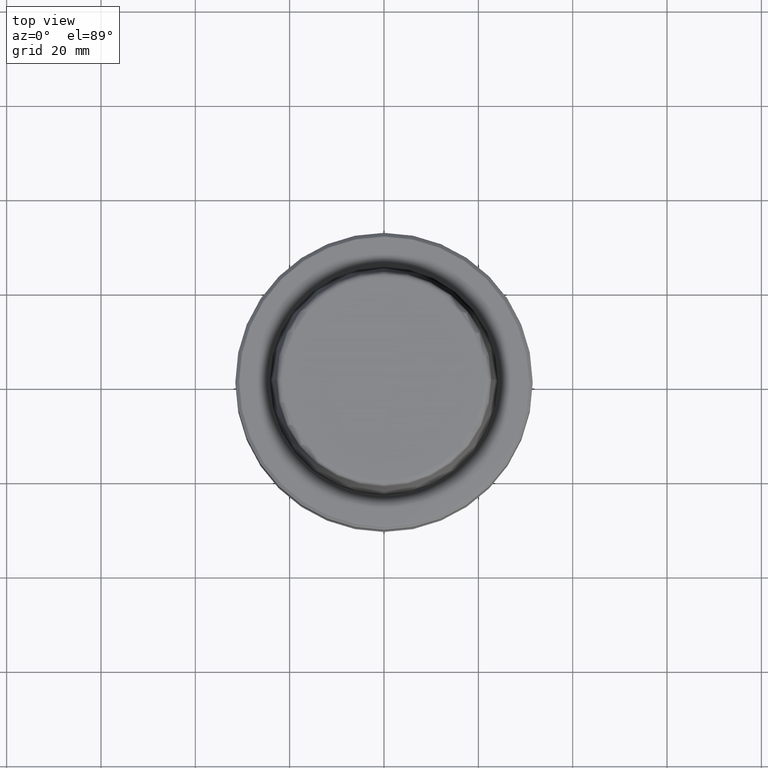
[diagram: clean part render]
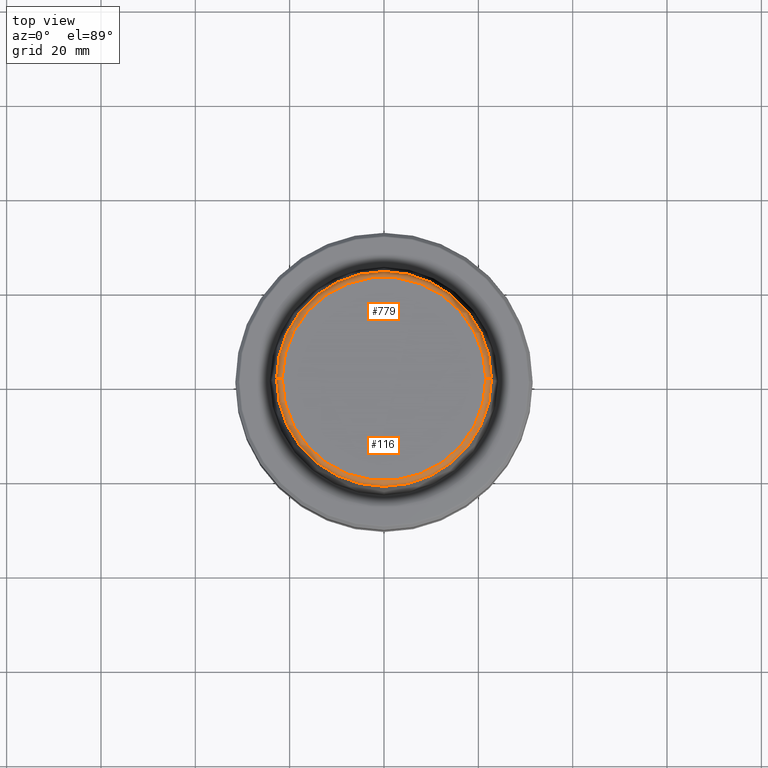
[diagram: same view with one multi-face feature highlighted, each face labeled with its STEP entity id]
A machine part, top view. The highlighted faces form ONE feature: a constant-radius fillet chain: 2 tangent blend faces with common blend radius 1.2 mm. The faces share edges in the B-rep.
Their STEP definitions:
[1] entity #116 (Torus):
#8 = DIRECTION ( 'NONE',  ( 0.0000000000000000000, 0.0000000000000000000, -1.000000000000000000 ) ) ;
#14 = EDGE_CURVE ( 'NONE', #872, #550, #424, .T. ) ;
#59 = CARTESIAN_POINT ( 'NONE',  ( 22.77957961851797100, 2.874852597157249900E-015, 30.76004333261571900 ) ) ;
#98 = CARTESIAN_POINT ( 'NONE',  ( -21.58108272732117100, 2.716307157494421400E-015, 31.89999999999999900 ) ) ;
#116 = ADVANCED_FACE ( 'NONE', ( #1163 ), #154, .T. ) ;
#118 = EDGE_LOOP ( 'NONE', ( #293, #986, #993, #246 ) ) ;
#154 = TOROIDAL_SURFACE ( 'NONE', #575, 21.58108272732117100, 1.200000000000003100 ) ;
#176 = EDGE_CURVE ( 'NONE', #735, #872, #519, .T. ) ;
#190 = DIRECTION ( 'NONE',  ( 1.000000000000000000, 0.0000000000000000000, 0.0000000000000000000 ) ) ;
#246 = ORIENTED_EDGE ( 'NONE', *, *, #431, .F. ) ;
#258 = CARTESIAN_POINT ( 'NONE',  ( 0.0000000000000000000, 0.0000000000000000000, 31.89999999999999900 ) ) ;
#293 = ORIENTED_EDGE ( 'NONE', *, *, #729, .F. ) ;
#304 = DIRECTION ( 'NONE',  ( -0.0000000000000000000, -0.0000000000000000000, 1.000000000000000000 ) ) ;
#424 = CIRCLE ( 'NONE', #1203, 1.200000000000003100 ) ;
#431 = EDGE_CURVE ( 'NONE', #934, #550, #1108, .T. ) ;
#457 = AXIS2_PLACEMENT_3D ( 'NONE', #258, #619, #1226 ) ;
#519 = CIRCLE ( 'NONE', #734, 22.77957961851797100 ) ;
#531 = DIRECTION ( 'NONE',  ( -1.000000000000000000, 1.224646799147353200E-016, 0.0000000000000000000 ) ) ;
#550 = VERTEX_POINT ( 'NONE', #1221 ) ;
#575 = AXIS2_PLACEMENT_3D ( 'NONE', #976, #304, #190 ) ;
#582 = DIRECTION ( 'NONE',  ( 0.0000000000000000000, -1.000000000000000000, 0.0000000000000000000 ) ) ;
#619 = DIRECTION ( 'NONE',  ( -0.0000000000000000000, -0.0000000000000000000, 1.000000000000000000 ) ) ;
#627 = CARTESIAN_POINT ( 'NONE',  ( -21.58108272732117100, 2.642920388414810300E-015, 30.69999999999999200 ) ) ;
#674 = CARTESIAN_POINT ( 'NONE',  ( 21.58108272732117100, 0.0000000000000000000, 30.69999999999999200 ) ) ;
#727 = DIRECTION ( 'NONE',  ( 1.224646799147353200E-016, 1.000000000000000000, 0.0000000000000000000 ) ) ;
#729 = EDGE_CURVE ( 'NONE', #735, #934, #1114, .T. ) ;
#734 = AXIS2_PLACEMENT_3D ( 'NONE', #1110, #1103, #997 ) ;
#735 = VERTEX_POINT ( 'NONE', #1218 ) ;
#872 = VERTEX_POINT ( 'NONE', #59 ) ;
#934 = VERTEX_POINT ( 'NONE', #98 ) ;
#939 = AXIS2_PLACEMENT_3D ( 'NONE', #627, #727, #531 ) ;
#976 = CARTESIAN_POINT ( 'NONE',  ( 0.0000000000000000000, 0.0000000000000000000, 30.69999999999999200 ) ) ;
#986 = ORIENTED_EDGE ( 'NONE', *, *, #176, .T. ) ;
#993 = ORIENTED_EDGE ( 'NONE', *, *, #14, .T. ) ;
#997 = DIRECTION ( 'NONE',  ( 1.000000000000000000, 0.0000000000000000000, 0.0000000000000000000 ) ) ;
#1103 = DIRECTION ( 'NONE',  ( -0.0000000000000000000, -0.0000000000000000000, 1.000000000000000000 ) ) ;
#1108 = CIRCLE ( 'NONE', #457, 21.58108272732117100 ) ;
#1110 = CARTESIAN_POINT ( 'NONE',  ( 0.0000000000000000000, 0.0000000000000000000, 30.76004333261571900 ) ) ;
#1114 = CIRCLE ( 'NONE', #939, 1.200000000000003100 ) ;
#1163 = FACE_OUTER_BOUND ( 'NONE', #118, .T. ) ;
#1203 = AXIS2_PLACEMENT_3D ( 'NONE', #674, #582, #8 ) ;
#1218 = CARTESIAN_POINT ( 'NONE',  ( -22.77957961851797100, 0.0000000000000000000, 30.76004333261571900 ) ) ;
#1221 = CARTESIAN_POINT ( 'NONE',  ( 21.58108272732117100, 0.0000000000000000000, 31.89999999999999900 ) ) ;
#1226 = DIRECTION ( 'NONE',  ( 1.000000000000000000, 0.0000000000000000000, 0.0000000000000000000 ) ) ;
[2] entity #779 (Torus):
#8 = DIRECTION ( 'NONE',  ( 0.0000000000000000000, 0.0000000000000000000, -1.000000000000000000 ) ) ;
#14 = EDGE_CURVE ( 'NONE', #872, #550, #424, .T. ) ;
#59 = CARTESIAN_POINT ( 'NONE',  ( 22.77957961851797100, 2.874852597157249900E-015, 30.76004333261571900 ) ) ;
#67 = DIRECTION ( 'NONE',  ( 1.000000000000000000, 0.0000000000000000000, 0.0000000000000000000 ) ) ;
#98 = CARTESIAN_POINT ( 'NONE',  ( -21.58108272732117100, 2.716307157494421400E-015, 31.89999999999999900 ) ) ;
#164 = CARTESIAN_POINT ( 'NONE',  ( 0.0000000000000000000, 0.0000000000000000000, 30.76004333261571900 ) ) ;
#165 = CIRCLE ( 'NONE', #1150, 22.77957961851797100 ) ;
#266 = TOROIDAL_SURFACE ( 'NONE', #1102, 21.58108272732117100, 1.200000000000003100 ) ;
#295 = CARTESIAN_POINT ( 'NONE',  ( 0.0000000000000000000, 0.0000000000000000000, 31.89999999999999900 ) ) ;
#393 = DIRECTION ( 'NONE',  ( 1.000000000000000000, 0.0000000000000000000, 0.0000000000000000000 ) ) ;
#424 = CIRCLE ( 'NONE', #1203, 1.200000000000003100 ) ;
#455 = DIRECTION ( 'NONE',  ( -0.0000000000000000000, -0.0000000000000000000, 1.000000000000000000 ) ) ;
#531 = DIRECTION ( 'NONE',  ( -1.000000000000000000, 1.224646799147353200E-016, 0.0000000000000000000 ) ) ;
#533 = EDGE_CURVE ( 'NONE', #872, #735, #165, .T. ) ;
#550 = VERTEX_POINT ( 'NONE', #1221 ) ;
#581 = EDGE_LOOP ( 'NONE', ( #911, #1113, #588, #586 ) ) ;
#582 = DIRECTION ( 'NONE',  ( 0.0000000000000000000, -1.000000000000000000, 0.0000000000000000000 ) ) ;
#586 = ORIENTED_EDGE ( 'NONE', *, *, #14, .F. ) ;
#588 = ORIENTED_EDGE ( 'NONE', *, *, #1057, .F. ) ;
#627 = CARTESIAN_POINT ( 'NONE',  ( -21.58108272732117100, 2.642920388414810300E-015, 30.69999999999999200 ) ) ;
#674 = CARTESIAN_POINT ( 'NONE',  ( 21.58108272732117100, 0.0000000000000000000, 30.69999999999999200 ) ) ;
#679 = CIRCLE ( 'NONE', #1230, 21.58108272732117100 ) ;
#727 = DIRECTION ( 'NONE',  ( 1.224646799147353200E-016, 1.000000000000000000, 0.0000000000000000000 ) ) ;
#729 = EDGE_CURVE ( 'NONE', #735, #934, #1114, .T. ) ;
#735 = VERTEX_POINT ( 'NONE', #1218 ) ;
#779 = ADVANCED_FACE ( 'NONE', ( #1213 ), #266, .T. ) ;
#872 = VERTEX_POINT ( 'NONE', #59 ) ;
#911 = ORIENTED_EDGE ( 'NONE', *, *, #533, .T. ) ;
#932 = CARTESIAN_POINT ( 'NONE',  ( 0.0000000000000000000, 0.0000000000000000000, 30.69999999999999200 ) ) ;
#934 = VERTEX_POINT ( 'NONE', #98 ) ;
#939 = AXIS2_PLACEMENT_3D ( 'NONE', #627, #727, #531 ) ;
#966 = DIRECTION ( 'NONE',  ( -0.0000000000000000000, -0.0000000000000000000, 1.000000000000000000 ) ) ;
#1051 = DIRECTION ( 'NONE',  ( -0.0000000000000000000, -0.0000000000000000000, 1.000000000000000000 ) ) ;
#1057 = EDGE_CURVE ( 'NONE', #550, #934, #679, .T. ) ;
#1102 = AXIS2_PLACEMENT_3D ( 'NONE', #932, #1051, #1237 ) ;
#1113 = ORIENTED_EDGE ( 'NONE', *, *, #729, .T. ) ;
#1114 = CIRCLE ( 'NONE', #939, 1.200000000000003100 ) ;
#1150 = AXIS2_PLACEMENT_3D ( 'NONE', #164, #455, #67 ) ;
#1203 = AXIS2_PLACEMENT_3D ( 'NONE', #674, #582, #8 ) ;
#1213 = FACE_OUTER_BOUND ( 'NONE', #581, .T. ) ;
#1218 = CARTESIAN_POINT ( 'NONE',  ( -22.77957961851797100, 0.0000000000000000000, 30.76004333261571900 ) ) ;
#1221 = CARTESIAN_POINT ( 'NONE',  ( 21.58108272732117100, 0.0000000000000000000, 31.89999999999999900 ) ) ;
#1230 = AXIS2_PLACEMENT_3D ( 'NONE', #295, #966, #393 ) ;
#1237 = DIRECTION ( 'NONE',  ( 1.000000000000000000, 0.0000000000000000000, 0.0000000000000000000 ) ) ;